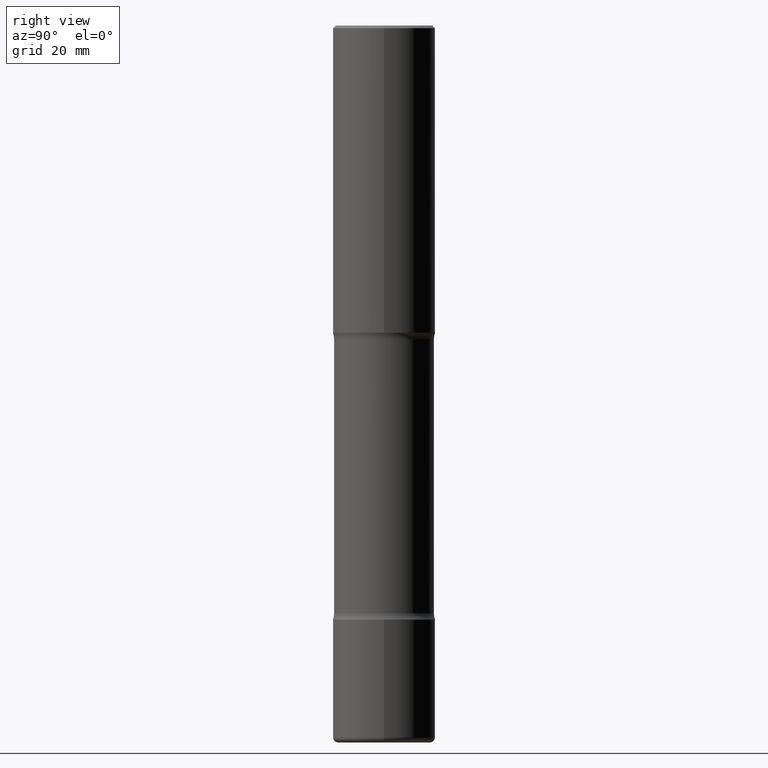
[diagram: clean part render]
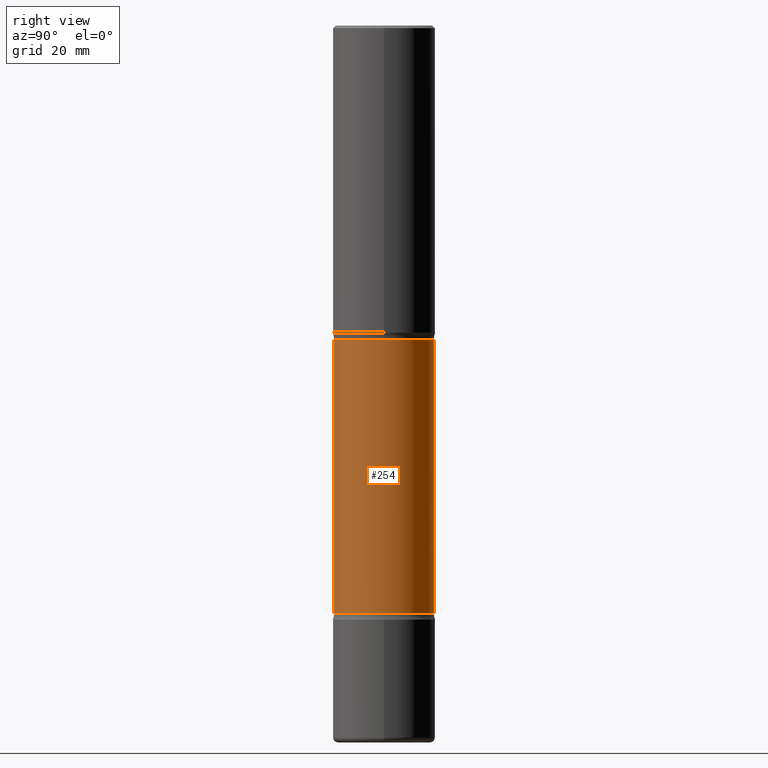
[diagram: same view with one face highlighted and labeled with its STEP entity id]
A machine part, right view. The second image highlights one B-rep face of the part: STEP entity #254.
In plain terms, the highlighted cylindrical surface (partial cylindrical patch) has radius 9.7409 mm, axis along (0, -0, -1).
Its self-contained STEP definition (entity closure, byte-faithful):
#12 = CARTESIAN_POINT ( 'NONE',  ( 2.677966186892794339E-15, 0.3834999999999843534, -4.517443352317409122 ) ) ;
#17 = DIRECTION ( 'NONE',  ( 2.540811743831259279E-29, -3.354944825550891508E-15, -1.000000000000000000 ) ) ;
#27 = DIRECTION ( 'NONE',  ( 6.982962677686265133E-15, 1.000000000000000000, -2.849385130288669478E-15 ) ) ;
#30 = VERTEX_POINT ( 'NONE', #304 ) ;
#35 = ORIENTED_EDGE ( 'NONE', *, *, #174, .T. ) ;
#54 = LINE ( 'NONE', #402, #407 ) ;
#64 = DIRECTION ( 'NONE',  ( 6.982962677686265133E-15, 1.000000000000000000, -2.849385130288669478E-15 ) ) ;
#96 = CARTESIAN_POINT ( 'NONE',  ( 5.692143870584579365E-29, -8.714523593702518262E-15, -2.411656647682592247 ) ) ;
#100 = CARTESIAN_POINT ( 'NONE',  ( 1.104255145972444542E-28, -1.577932180213095535E-14, -4.517443352317408234 ) ) ;
#120 = AXIS2_PLACEMENT_3D ( 'NONE', #412, #231, #27 ) ;
#136 = ORIENTED_EDGE ( 'NONE', *, *, #291, .F. ) ;
#174 = EDGE_CURVE ( 'NONE', #30, #219, #414, .T. ) ;
#199 = VERTEX_POINT ( 'NONE', #12 ) ;
#219 = VERTEX_POINT ( 'NONE', #242 ) ;
#226 = LINE ( 'NONE', #527, #435 ) ;
#231 = DIRECTION ( 'NONE',  ( 2.540811743831259279E-29, -3.354944825550891508E-15, -1.000000000000000000 ) ) ;
#234 = CYLINDRICAL_SURFACE ( 'NONE', #120, 0.3835000000000001741 ) ;
#242 = CARTESIAN_POINT ( 'NONE',  ( -2.665989521933963355E-15, -0.3835000000000089448, -2.411656647682590915 ) ) ;
#254 = ADVANCED_FACE ( 'NONE', ( #420 ), #234, .T. ) ;
#272 = AXIS2_PLACEMENT_3D ( 'NONE', #100, #499, #64 ) ;
#291 = EDGE_CURVE ( 'NONE', #199, #541, #467, .T. ) ;
#304 = CARTESIAN_POINT ( 'NONE',  ( 2.677966186892741091E-15, 0.3834999999999914588, -2.411656647682594024 ) ) ;
#350 = EDGE_CURVE ( 'NONE', #30, #199, #226, .T. ) ;
#370 = EDGE_CURVE ( 'NONE', #219, #541, #54, .T. ) ;
#386 = AXIS2_PLACEMENT_3D ( 'NONE', #96, #496, #455 ) ;
#402 = CARTESIAN_POINT ( 'NONE',  ( -2.631000982145247058E-15, -0.3835000000000192699, -5.511799999999999145 ) ) ;
#407 = VECTOR ( 'NONE', #17, 39.37007874015748143 ) ;
#412 = CARTESIAN_POINT ( 'NONE',  ( 1.356902450771305887E-28, -1.911533349202580181E-14, -5.511800000000000033 ) ) ;
#414 = CIRCLE ( 'NONE', #386, 0.3835000000000002296 ) ;
#420 = FACE_OUTER_BOUND ( 'NONE', #473, .T. ) ;
#428 = ORIENTED_EDGE ( 'NONE', *, *, #370, .T. ) ;
#435 = VECTOR ( 'NONE', #534, 39.37007874015748143 ) ;
#455 = DIRECTION ( 'NONE',  ( 6.982962677686265133E-15, 1.000000000000000000, -3.561731412860836552E-15 ) ) ;
#467 = CIRCLE ( 'NONE', #272, 0.3835000000000001741 ) ;
#473 = EDGE_LOOP ( 'NONE', ( #35, #428, #136, #503 ) ) ;
#496 = DIRECTION ( 'NONE',  ( 2.540811743831259279E-29, -3.354944825550891508E-15, -1.000000000000000000 ) ) ;
#499 = DIRECTION ( 'NONE',  ( 2.540811743831259279E-29, -3.354944825550891508E-15, -1.000000000000000000 ) ) ;
#503 = ORIENTED_EDGE ( 'NONE', *, *, #350, .F. ) ;
#512 = CARTESIAN_POINT ( 'NONE',  ( -2.665989521933907346E-15, -0.3835000000000159392, -4.517443352317407346 ) ) ;
#527 = CARTESIAN_POINT ( 'NONE',  ( 2.677966186892819583E-15, 0.3834999999999810227, -5.511800000000000921 ) ) ;
#534 = DIRECTION ( 'NONE',  ( 2.540811743831259279E-29, -3.354944825550891508E-15, -1.000000000000000000 ) ) ;
#541 = VERTEX_POINT ( 'NONE', #512 ) ;